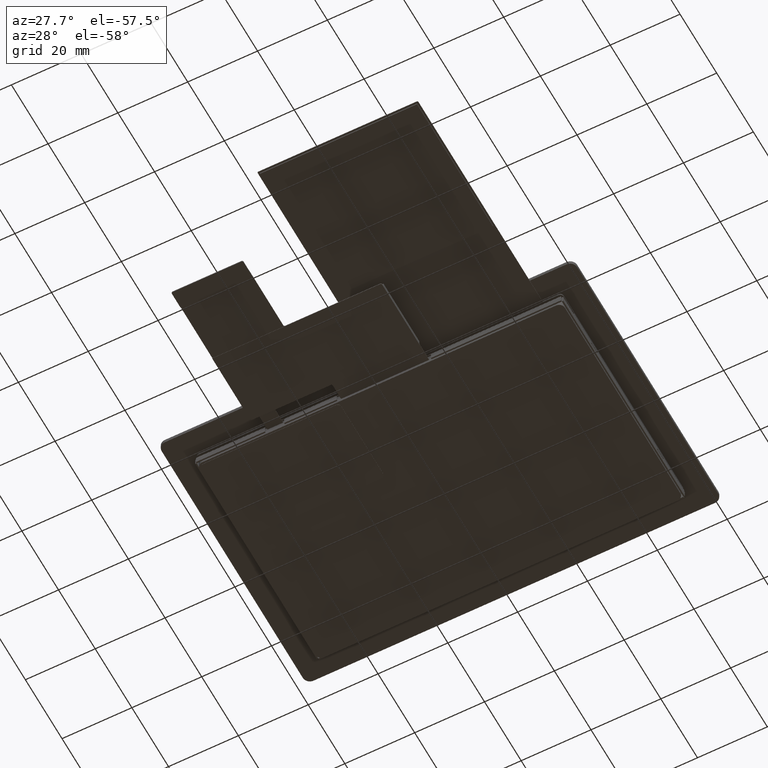
[diagram: clean part render]
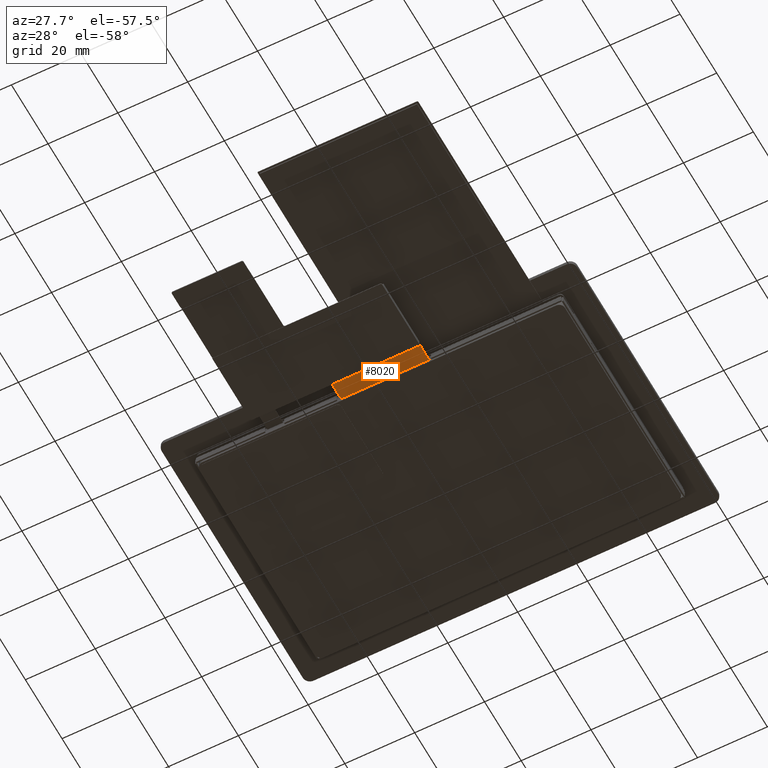
[diagram: same view with one face highlighted and labeled with its STEP entity id]
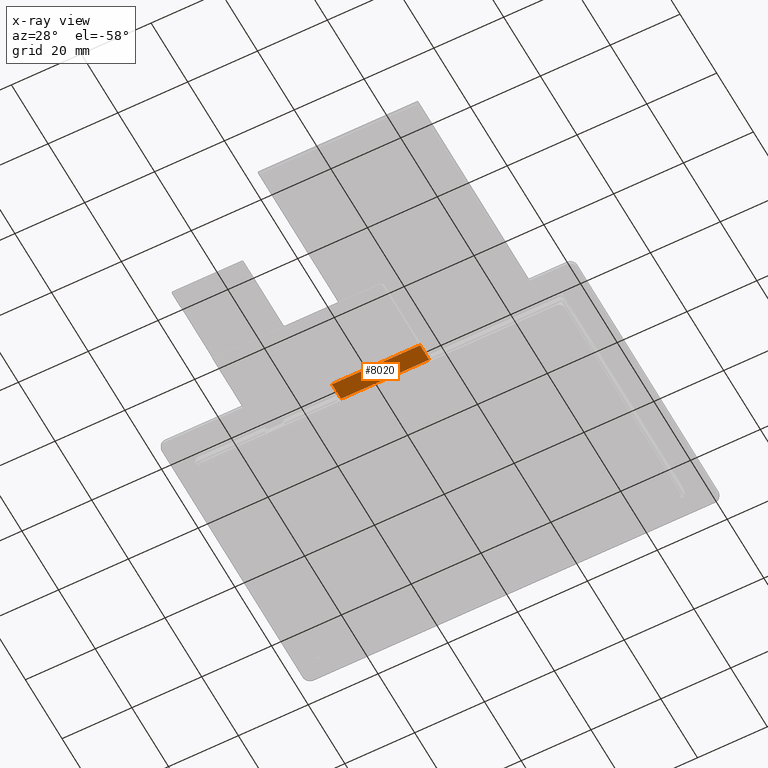
[diagram: x-ray of the same camera — body ghosted, the highlighted face saturated]
A machine part, auxiliary view. The second image highlights one B-rep face of the part: STEP entity #8020.
The next image is the same camera in x-ray: the body ghosted, the highlighted face saturated — about 0% of this face is hidden behind the body in this view.
In plain terms, the highlighted planar face has unit normal (0, 0, 1).
Its self-contained STEP definition (entity closure, byte-faithful):
#151=PLANE('',#8502);
#539=FACE_OUTER_BOUND('',#974,.T.);
#974=EDGE_LOOP('',(#6002,#6003,#6004,#6005,#6006));
#1542=LINE('',#11469,#2620);
#1543=LINE('',#11471,#2621);
#1544=LINE('',#11473,#2622);
#1545=LINE('',#11476,#2623);
#2620=VECTOR('',#9348,10.);
#2621=VECTOR('',#9349,10.);
#2622=VECTOR('',#9350,25.66292531226);
#2623=VECTOR('',#9353,9.597074687738);
#3511=CIRCLE('',#8503,0.402925312262);
#3728=VERTEX_POINT('',#11467);
#3729=VERTEX_POINT('',#11468);
#3730=VERTEX_POINT('',#11470);
#3731=VERTEX_POINT('',#11472);
#3732=VERTEX_POINT('',#11474);
#4580=EDGE_CURVE('',#3728,#3729,#1542,.T.);
#4581=EDGE_CURVE('',#3730,#3728,#1543,.T.);
#4582=EDGE_CURVE('',#3731,#3730,#1544,.T.);
#4583=EDGE_CURVE('',#3732,#3731,#3511,.T.);
#4584=EDGE_CURVE('',#3729,#3732,#1545,.T.);
#6002=ORIENTED_EDGE('',*,*,#4580,.F.);
#6003=ORIENTED_EDGE('',*,*,#4581,.F.);
#6004=ORIENTED_EDGE('',*,*,#4582,.F.);
#6005=ORIENTED_EDGE('',*,*,#4583,.F.);
#6006=ORIENTED_EDGE('',*,*,#4584,.F.);
#8020=ADVANCED_FACE('',(#539),#151,.F.);
#8502=AXIS2_PLACEMENT_3D('',#11466,#9346,#9347);
#8503=AXIS2_PLACEMENT_3D('',#11475,#9351,#9352);
#9346=DIRECTION('center_axis',(0.,0.,1.));
#9347=DIRECTION('ref_axis',(1.,8.65815638633699E-16,0.));
#9348=DIRECTION('',(-1.,-8.65815638633699E-16,0.));
#9349=DIRECTION('',(-8.65815638633699E-16,1.,0.));
#9350=DIRECTION('',(1.,8.65815638633699E-16,0.));
#9351=DIRECTION('center_axis',(0.,0.,-1.));
#9352=DIRECTION('ref_axis',(1.,8.65815638633699E-16,0.));
#9353=DIRECTION('',(8.65815638633699E-16,-1.,0.));
#11466=CARTESIAN_POINT('Origin',(-11.0000000000016,-52.6707898479989,-4.23999999999999));
#11467=CARTESIAN_POINT('',(14.2499999999984,-35.4219999999991,-4.23999999999999));
#11468=CARTESIAN_POINT('',(-11.0000000000016,-35.4219999999991,-4.23999999999999));
#11469=CARTESIAN_POINT('',(-31.6500000000016,-35.4219999999991,-4.23999999999999));
#11470=CARTESIAN_POINT('',(14.2499999999984,-40.3519999997489,-4.23999999999999));
#11471=CARTESIAN_POINT('',(14.2499999999984,-40.3519999997489,-4.23999999999999));
#11472=CARTESIAN_POINT('',(-11.4029253122638,-40.3519999997489,-4.23999999999999));
#11473=CARTESIAN_POINT('',(-11.4029253122638,-40.3519999997489,-4.23999999999999));
#11474=CARTESIAN_POINT('',(-11.0000000000016,-39.9490746874889,-4.23999999999999));
#11475=CARTESIAN_POINT('Origin',(-11.4029253122638,-39.9490746874889,-4.23999999999999));
#11476=CARTESIAN_POINT('',(-11.0000000000016,-30.3519999997489,-4.23999999999999));